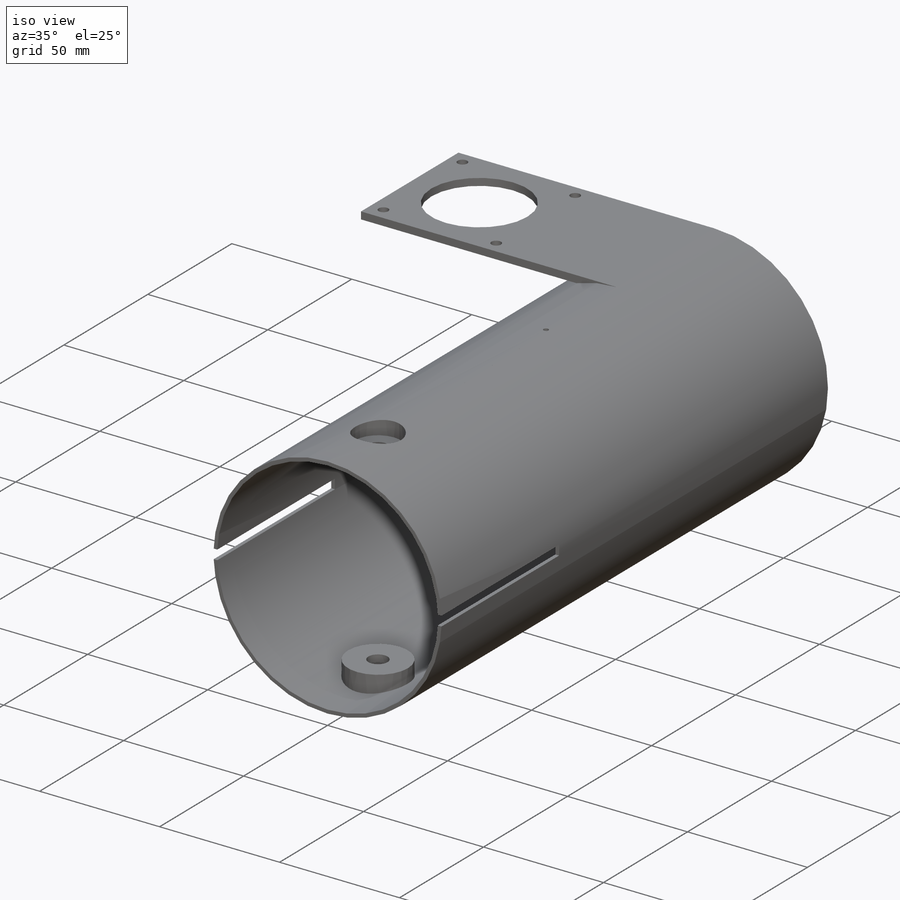
[diagram: iso view]
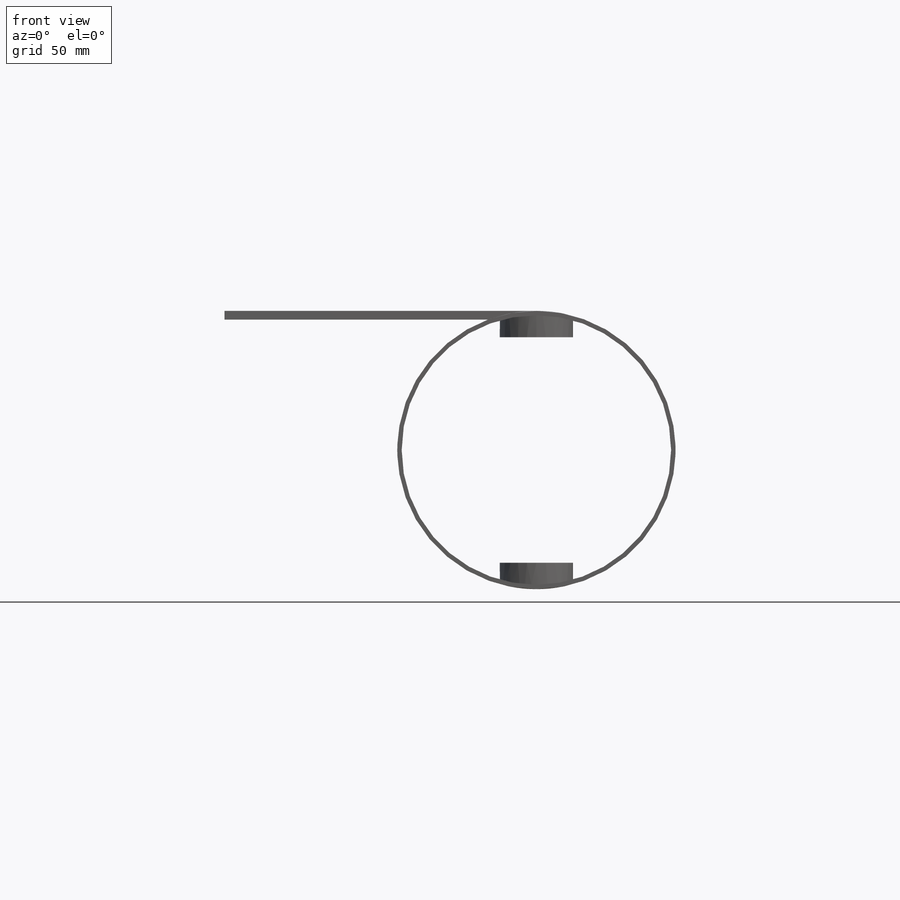
[diagram: front view]
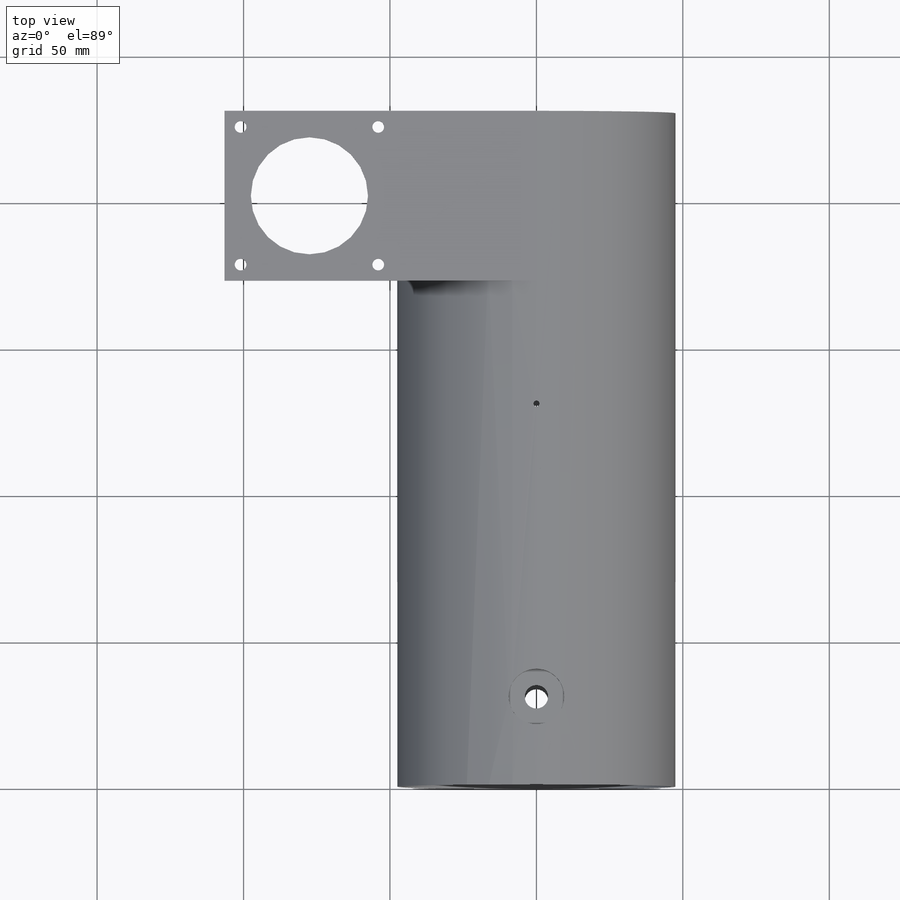
[diagram: top view]
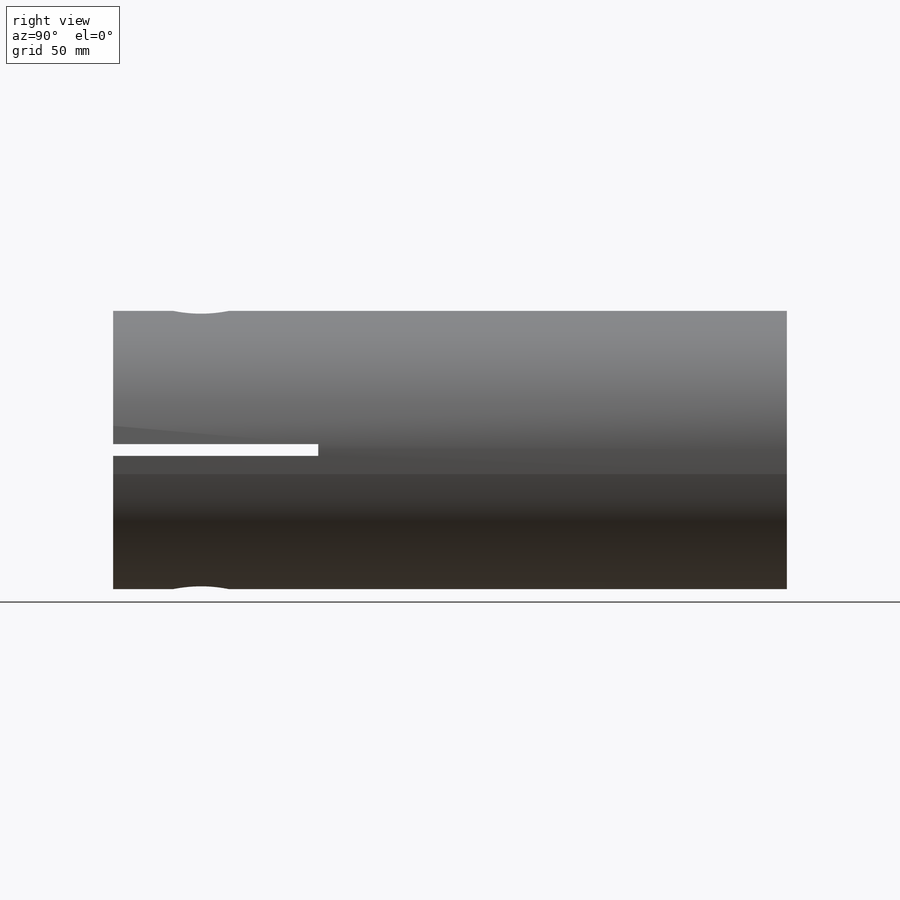
[diagram: right view]
SOLIDWORKS PART (.sldprt)
format: sldprt  version: not decoded by parser v0  size: 328,704 bytes
history: native  units: mm
features: sketch x11, extrude x6, cut_extrude x5, plane x3, material x1 (+12 scaffold rows collapsed)
feature tree (38):
  scaffold x12  (default folders/planes/origin — collapsed)
  material  "1060 Alloy"
  sketch  "Sketch1"  dims[D1=92.0mm D2=95.0mm]
  extrude  "Boss-Extrude1"  Depth=250mm
  sketch  "Sketch2"  dims[c1.D2=2.0mm c1.D1=120.0mm c2.D2=~105.476458mm]
  cut_extrude  "Cut-Extrude1"  Depth=250mm
  sketch  "Sketch3"  dims[c1.D1=20.0mm c1.D2=95.0mm c2.D1=20.0mm]
  cut_extrude  "Cut-Extrude2"  Depth=79mm
  sketch  "Sketch4"  dims[c1.D2=19.0mm c1.D1=220.0mm c2.D2=~105.680371mm]
  cut_extrude  "Cut-Extrude3"  Depth=73mm
  plane  "Plane1"  Offset=41.5mm
  sketch  "Sketch5"  dims[D1=25.0mm]
  extrude  "Boss-Extrude2"  [1 undecoded]
  plane  "Plane2"  Offset=41.5mm
  sketch  "Sketch10"  dims[D1=8.0mm]
  extrude  "Boss-Extrude7"  Depth=3mm
  sketch  "Sketch12"  dims[D1=25.0mm]
  extrude  "Boss-Extrude8"  [1 undecoded]
  sketch  "Sketch13"  dims[D1=8.0mm]
  extrude  "Boss-Extrude9"  Depth=3mm
  plane  "Plane3"  Offset=20mm
  sketch  "Sketch17"  dims[c1.D3=47.5mm c1.D1=106.5mm c1.D2=3.0mm c2.D3=~1.946478mm]
  extrude  "Boss-Extrude11"  Depth=58mm
  sketch  "Sketch18"  dims[c1.D4=4.0mm c1.D5=40.0mm c1.D1=5.5mm c1.D2=5.5mm c1.D3=29.0mm c2.D4=~33.802342mm]
  cut_extrude  "Cut-Extrude5"  Depth=58mm
  sketch  "Sketch19"  dims[D1=70.0mm D2=2.0mm D3=2.0mm D4=2.0mm D5=2.0mm]
  cut_extrude  "Cut-Extrude6"  Depth=82mm
decode coverage: 20 of 22 modeling features carry decoded parameters
note: ~ marks probable driven/reference dimensions
note: 2 parameter values undecoded
note: suppression state not decoded; provenance and decode notes live in map.json
